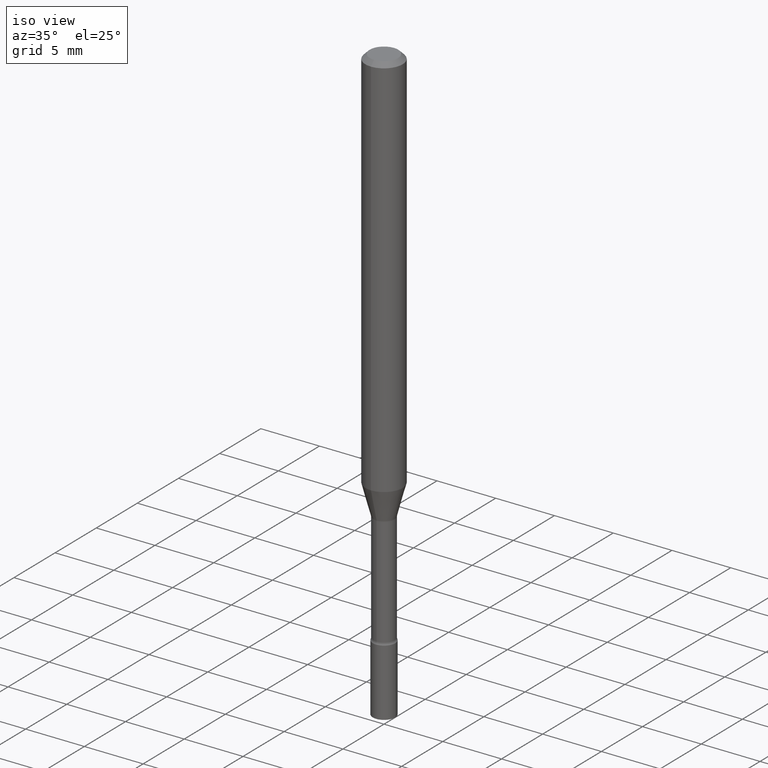
[diagram: clean part render]
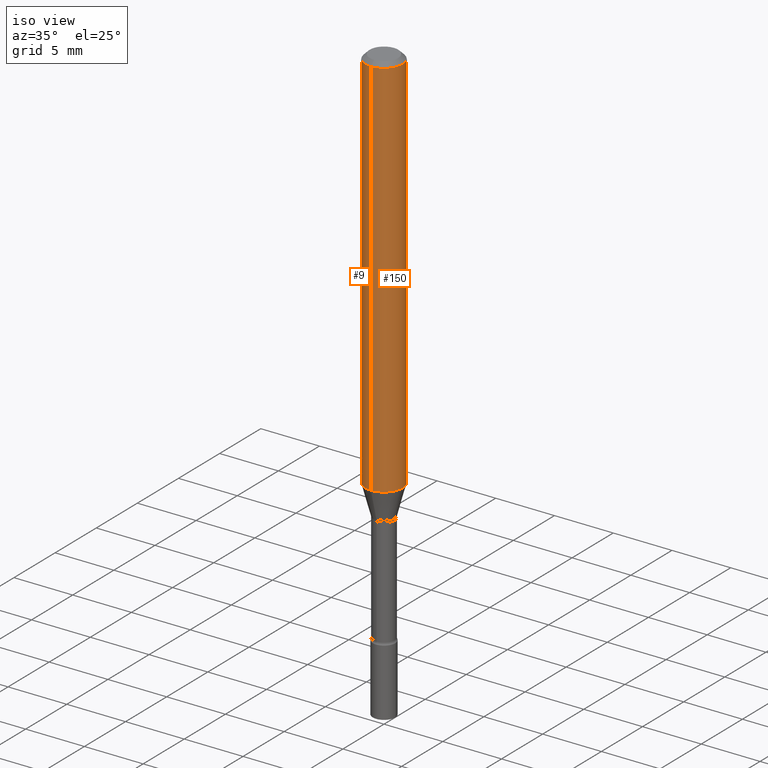
[diagram: same view with one multi-face feature highlighted, each face labeled with its STEP entity id]
A machine part, iso view. The highlighted faces form ONE feature: a constant-radius fillet chain: 2 tangent blend faces with common blend radius 1.5875 mm. The faces share edges in the B-rep.
Their STEP definitions:
[1] entity #9 (Cylinder):
#4 = DIRECTION ( 'NONE',  ( -2.445473795109734051E-29, 3.491474194419170735E-15, 1.000000000000000000 ) ) ;
#9 = ADVANCED_FACE ( 'NONE', ( #407 ), #403, .T. ) ;
#51 = DIRECTION ( 'NONE',  ( -6.982962677686265922E-15, -1.000000000000000000, 4.370956789862821150E-15 ) ) ;
#63 = VECTOR ( 'NONE', #108, 39.37007874015748143 ) ;
#66 = EDGE_CURVE ( 'NONE', #324, #515, #518, .T. ) ;
#86 = DIRECTION ( 'NONE',  ( -6.982962677686265922E-15, -1.000000000000000000, 3.491474194419170341E-15 ) ) ;
#93 = VERTEX_POINT ( 'NONE', #208 ) ;
#95 = VECTOR ( 'NONE', #4, 39.37007874015748143 ) ;
#101 = LINE ( 'NONE', #126, #63 ) ;
#108 = DIRECTION ( 'NONE',  ( -2.445473795109734051E-29, 3.491474194419170735E-15, 1.000000000000000000 ) ) ;
#110 = ORIENTED_EDGE ( 'NONE', *, *, #454, .T. ) ;
#121 = CARTESIAN_POINT ( 'NONE',  ( -4.364351673553600657E-16, -0.06250000000000456579, -1.298301615493748118 ) ) ;
#126 = CARTESIAN_POINT ( 'NONE',  ( 4.440892098500625669E-16, 0.06250000000000000000, -2.182171371511981463E-16 ) ) ;
#131 = DIRECTION ( 'NONE',  ( -2.445473795109733770E-29, 3.491474194419170341E-15, 1.000000000000000000 ) ) ;
#157 = CARTESIAN_POINT ( 'NONE',  ( 0.000000000000000000, 0.000000000000000000, 0.000000000000000000 ) ) ;
#199 = DIRECTION ( 'NONE',  ( -6.982962677686265922E-15, -1.000000000000000000, 3.483106191921935554E-15 ) ) ;
#208 = CARTESIAN_POINT ( 'NONE',  ( -4.364351673553912750E-16, -0.06250000000000005551, -0.01499999999999981209 ) ) ;
#219 = EDGE_LOOP ( 'NONE', ( #491, #304, #110, #347 ) ) ;
#286 = AXIS2_PLACEMENT_3D ( 'NONE', #447, #410, #51 ) ;
#304 = ORIENTED_EDGE ( 'NONE', *, *, #66, .T. ) ;
#324 = VERTEX_POINT ( 'NONE', #467 ) ;
#336 = EDGE_CURVE ( 'NONE', #324, #387, #101, .T. ) ;
#347 = ORIENTED_EDGE ( 'NONE', *, *, #450, .F. ) ;
#365 = LINE ( 'NONE', #406, #95 ) ;
#381 = CARTESIAN_POINT ( 'NONE',  ( 3.668210692664607872E-31, -5.237211291628766482E-17, -0.01500000000000003067 ) ) ;
#387 = VERTEX_POINT ( 'NONE', #411 ) ;
#399 = AXIS2_PLACEMENT_3D ( 'NONE', #381, #434, #199 ) ;
#403 = CYLINDRICAL_SURFACE ( 'NONE', #458, 0.06250000000000000000 ) ;
#406 = CARTESIAN_POINT ( 'NONE',  ( -4.364351673553916201E-16, -0.06250000000000000000, 2.182171371511981463E-16 ) ) ;
#407 = FACE_OUTER_BOUND ( 'NONE', #219, .T. ) ;
#410 = DIRECTION ( 'NONE',  ( -2.445473795109733770E-29, 3.491474194419170341E-15, 1.000000000000000000 ) ) ;
#411 = CARTESIAN_POINT ( 'NONE',  ( 4.440892098500945650E-16, 0.06249999999999995143, -0.01500000000000024751 ) ) ;
#434 = DIRECTION ( 'NONE',  ( -2.445473795109733770E-29, 3.491474194419170341E-15, 1.000000000000000000 ) ) ;
#447 = CARTESIAN_POINT ( 'NONE',  ( 3.174962578838594889E-29, -4.532986587069142857E-15, -1.298301615493748340 ) ) ;
#450 = EDGE_CURVE ( 'NONE', #387, #93, #466, .T. ) ;
#454 = EDGE_CURVE ( 'NONE', #515, #93, #365, .T. ) ;
#458 = AXIS2_PLACEMENT_3D ( 'NONE', #157, #131, #86 ) ;
#466 = CIRCLE ( 'NONE', #399, 0.06250000000000000000 ) ;
#467 = CARTESIAN_POINT ( 'NONE',  ( 4.440892098500939734E-16, 0.06249999999999543421, -1.298301615493748562 ) ) ;
#491 = ORIENTED_EDGE ( 'NONE', *, *, #336, .F. ) ;
#515 = VERTEX_POINT ( 'NONE', #121 ) ;
#518 = CIRCLE ( 'NONE', #286, 0.06250000000000000000 ) ;
[2] entity #150 (Cylinder):
#4 = DIRECTION ( 'NONE',  ( -2.445473795109734051E-29, 3.491474194419170735E-15, 1.000000000000000000 ) ) ;
#14 = CIRCLE ( 'NONE', #72, 0.06250000000000000000 ) ;
#26 = ORIENTED_EDGE ( 'NONE', *, *, #336, .T. ) ;
#63 = VECTOR ( 'NONE', #108, 39.37007874015748143 ) ;
#71 = AXIS2_PLACEMENT_3D ( 'NONE', #441, #193, #183 ) ;
#72 = AXIS2_PLACEMENT_3D ( 'NONE', #452, #135, #319 ) ;
#87 = ORIENTED_EDGE ( 'NONE', *, *, #355, .F. ) ;
#93 = VERTEX_POINT ( 'NONE', #208 ) ;
#95 = VECTOR ( 'NONE', #4, 39.37007874015748143 ) ;
#101 = LINE ( 'NONE', #126, #63 ) ;
#106 = CYLINDRICAL_SURFACE ( 'NONE', #133, 0.06250000000000000000 ) ;
#108 = DIRECTION ( 'NONE',  ( -2.445473795109734051E-29, 3.491474194419170735E-15, 1.000000000000000000 ) ) ;
#121 = CARTESIAN_POINT ( 'NONE',  ( -4.364351673553600657E-16, -0.06250000000000456579, -1.298301615493748118 ) ) ;
#126 = CARTESIAN_POINT ( 'NONE',  ( 4.440892098500625669E-16, 0.06250000000000000000, -2.182171371511981463E-16 ) ) ;
#133 = AXIS2_PLACEMENT_3D ( 'NONE', #268, #427, #386 ) ;
#135 = DIRECTION ( 'NONE',  ( -2.445473795109733770E-29, 3.491474194419170341E-15, 1.000000000000000000 ) ) ;
#150 = ADVANCED_FACE ( 'NONE', ( #377 ), #106, .T. ) ;
#177 = ORIENTED_EDGE ( 'NONE', *, *, #454, .F. ) ;
#183 = DIRECTION ( 'NONE',  ( -6.982962677686265922E-15, -1.000000000000000000, 4.370956789862821150E-15 ) ) ;
#193 = DIRECTION ( 'NONE',  ( -2.445473795109733770E-29, 3.491474194419170341E-15, 1.000000000000000000 ) ) ;
#208 = CARTESIAN_POINT ( 'NONE',  ( -4.364351673553912750E-16, -0.06250000000000005551, -0.01499999999999981209 ) ) ;
#268 = CARTESIAN_POINT ( 'NONE',  ( 0.000000000000000000, 0.000000000000000000, 0.000000000000000000 ) ) ;
#303 = EDGE_CURVE ( 'NONE', #515, #324, #423, .T. ) ;
#319 = DIRECTION ( 'NONE',  ( -6.982962677686265922E-15, -1.000000000000000000, 3.483106191921935554E-15 ) ) ;
#324 = VERTEX_POINT ( 'NONE', #467 ) ;
#336 = EDGE_CURVE ( 'NONE', #324, #387, #101, .T. ) ;
#355 = EDGE_CURVE ( 'NONE', #93, #387, #14, .T. ) ;
#365 = LINE ( 'NONE', #406, #95 ) ;
#377 = FACE_OUTER_BOUND ( 'NONE', #424, .T. ) ;
#386 = DIRECTION ( 'NONE',  ( -6.982962677686265922E-15, -1.000000000000000000, 3.491474194419170341E-15 ) ) ;
#387 = VERTEX_POINT ( 'NONE', #411 ) ;
#406 = CARTESIAN_POINT ( 'NONE',  ( -4.364351673553916201E-16, -0.06250000000000000000, 2.182171371511981463E-16 ) ) ;
#411 = CARTESIAN_POINT ( 'NONE',  ( 4.440892098500945650E-16, 0.06249999999999995143, -0.01500000000000024751 ) ) ;
#421 = ORIENTED_EDGE ( 'NONE', *, *, #303, .T. ) ;
#423 = CIRCLE ( 'NONE', #71, 0.06250000000000000000 ) ;
#424 = EDGE_LOOP ( 'NONE', ( #421, #26, #87, #177 ) ) ;
#427 = DIRECTION ( 'NONE',  ( -2.445473795109733770E-29, 3.491474194419170341E-15, 1.000000000000000000 ) ) ;
#441 = CARTESIAN_POINT ( 'NONE',  ( 3.174962578838594889E-29, -4.532986587069142857E-15, -1.298301615493748340 ) ) ;
#452 = CARTESIAN_POINT ( 'NONE',  ( 3.668210692664607872E-31, -5.237211291628766482E-17, -0.01500000000000003067 ) ) ;
#454 = EDGE_CURVE ( 'NONE', #515, #93, #365, .T. ) ;
#467 = CARTESIAN_POINT ( 'NONE',  ( 4.440892098500939734E-16, 0.06249999999999543421, -1.298301615493748562 ) ) ;
#515 = VERTEX_POINT ( 'NONE', #121 ) ;